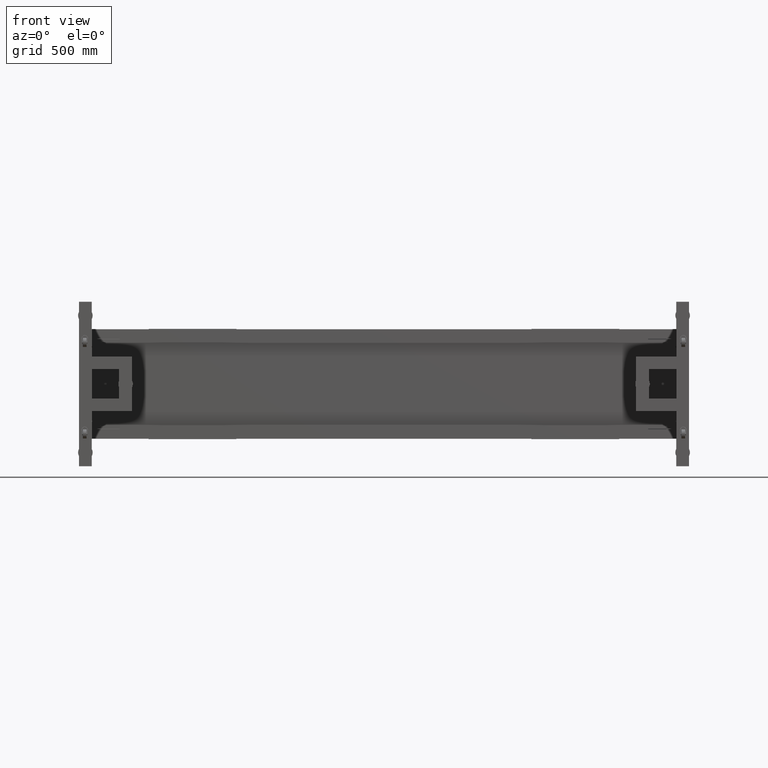
[diagram: clean part render]
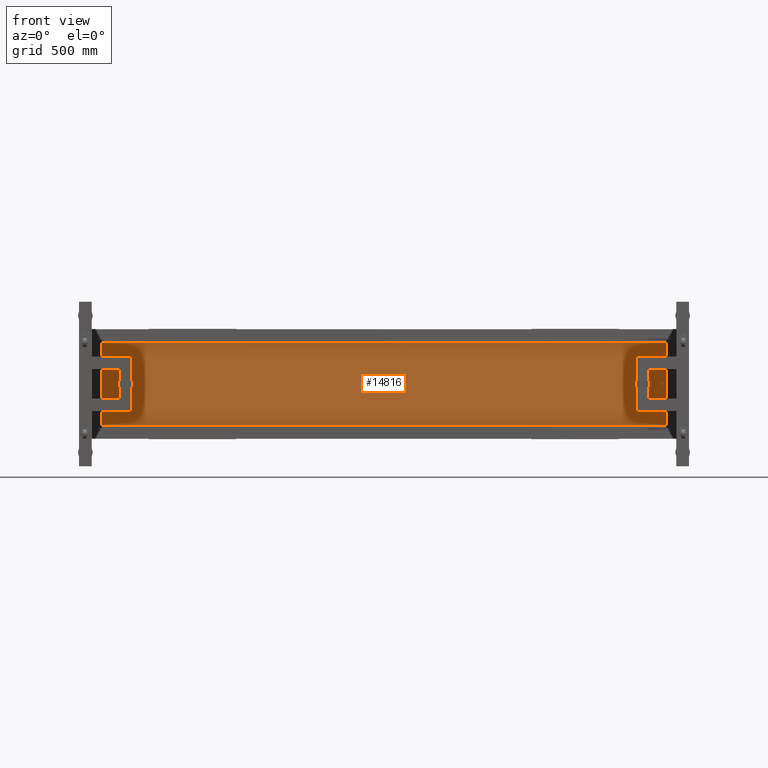
[diagram: same view with one face highlighted and labeled with its STEP entity id]
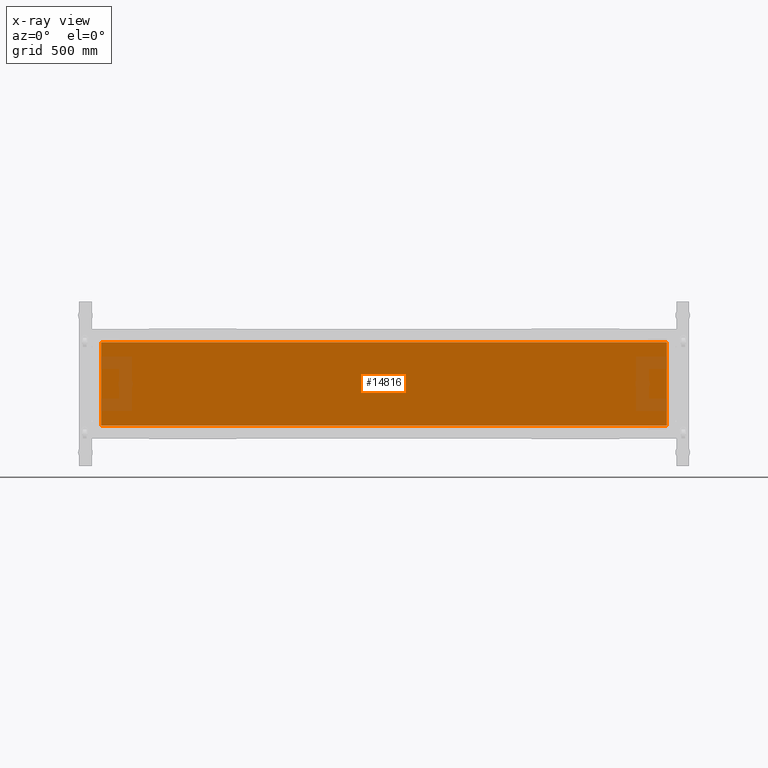
[diagram: x-ray of the same camera — body ghosted, the highlighted face saturated]
A machine part, front view. The second image highlights one B-rep face of the part: STEP entity #14816.
The next image is the same camera in x-ray: the body ghosted, the highlighted face saturated — about 5% of this face is hidden behind the body in this view.
In plain terms, the highlighted planar face has unit normal (-0, 1, -0).
Its self-contained STEP definition (entity closure, byte-faithful):
#3195 = DIRECTION ( 'NONE',  ( 1.000000000000000000, 4.543257172554223644E-16, 0.000000000000000000 ) ) ;
#9203 = DIRECTION ( 'NONE',  ( 0.000000000000000000, 1.000000000000000472E-15, 1.000000000000000000 ) ) ;
#14816 = ADVANCED_FACE ( 'NONE', ( #36593 ), #30068, .F. ) ;
#14933 = CARTESIAN_POINT ( 'NONE',  ( -1216.662487437185973, 555.4410804020124033, -228.4899999999998954 ) ) ;
#15362 = LINE ( 'NONE', #14933, #41262 ) ;
#15737 = ORIENTED_EDGE ( 'NONE', *, *, #22551, .F. ) ;
#19556 = VERTEX_POINT ( 'NONE', #46824 ) ;
#20814 = LINE ( 'NONE', #21610, #38359 ) ;
#21055 = VERTEX_POINT ( 'NONE', #63965 ) ;
#21331 = DIRECTION ( 'NONE',  ( -4.543257172554225407E-31, 1.000000000000000472E-15, 1.000000000000000000 ) ) ;
#21610 = CARTESIAN_POINT ( 'NONE',  ( -516.6624874371852911, 555.4410804020124033, -228.4899999999998954 ) ) ;
#22042 = DIRECTION ( 'NONE',  ( -1.000000000000000000, -4.543257172554223644E-16, 0.000000000000000000 ) ) ;
#22551 = EDGE_CURVE ( 'NONE', #19556, #21055, #15362, .T. ) ;
#22823 = CARTESIAN_POINT ( 'NONE',  ( 1880.317512562814727, 555.4410804020139949, 228.4900000000001228 ) ) ;
#27391 = LINE ( 'NONE', #22823, #77996 ) ;
#28474 = DIRECTION ( 'NONE',  ( -4.543257172554223644E-16, 1.000000000000000000, -1.000000000000000472E-15 ) ) ;
#29035 = VERTEX_POINT ( 'NONE', #59784 ) ;
#30068 = PLANE ( 'NONE',  #64029 ) ;
#33407 = EDGE_LOOP ( 'NONE', ( #69133, #15737, #74068, #64340 ) ) ;
#36593 = FACE_OUTER_BOUND ( 'NONE', #33407, .T. ) ;
#37688 = VERTEX_POINT ( 'NONE', #74347 ) ;
#38359 = VECTOR ( 'NONE', #3195, 1000.000000000000000 ) ;
#40575 = LINE ( 'NONE', #46721, #64486 ) ;
#41262 = VECTOR ( 'NONE', #9203, 1000.000000000000000 ) ;
#46721 = CARTESIAN_POINT ( 'NONE',  ( 1880.317512562814727, 555.4410804020135402, -228.4899999999998954 ) ) ;
#46824 = CARTESIAN_POINT ( 'NONE',  ( -1216.662487437185973, 555.4410804020124033, -228.4899999999998954 ) ) ;
#48158 = EDGE_CURVE ( 'NONE', #37688, #29035, #40575, .T. ) ;
#48853 = DIRECTION ( 'NONE',  ( -4.543257172554225407E-31, 1.000000000000000472E-15, 1.000000000000000000 ) ) ;
#55008 = CARTESIAN_POINT ( 'NONE',  ( 681.8275125628146043, 555.4410804020131991, 1.110223024625156540E-13 ) ) ;
#55381 = EDGE_CURVE ( 'NONE', #19556, #37688, #20814, .T. ) ;
#58431 = EDGE_CURVE ( 'NONE', #29035, #21055, #27391, .T. ) ;
#59784 = CARTESIAN_POINT ( 'NONE',  ( 1880.317512562814727, 555.4410804020139949, 228.4900000000081093 ) ) ;
#63965 = CARTESIAN_POINT ( 'NONE',  ( -1216.662487437185973, 555.4410804020128580, 228.4900000000081093 ) ) ;
#64029 = AXIS2_PLACEMENT_3D ( 'NONE', #55008, #28474, #48853 ) ;
#64340 = ORIENTED_EDGE ( 'NONE', *, *, #48158, .T. ) ;
#64486 = VECTOR ( 'NONE', #21331, 1000.000000000000000 ) ;
#69133 = ORIENTED_EDGE ( 'NONE', *, *, #58431, .T. ) ;
#74068 = ORIENTED_EDGE ( 'NONE', *, *, #55381, .T. ) ;
#74347 = CARTESIAN_POINT ( 'NONE',  ( 1880.317512562814727, 555.4410804020135402, -228.4899999999998954 ) ) ;
#77996 = VECTOR ( 'NONE', #22042, 1000.000000000000000 ) ;